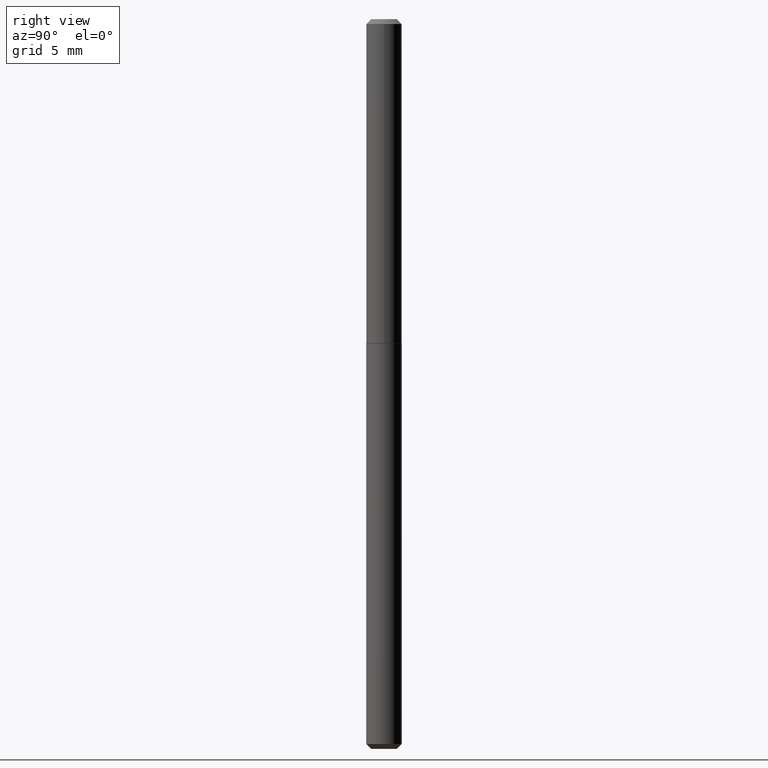
[diagram: clean part render]
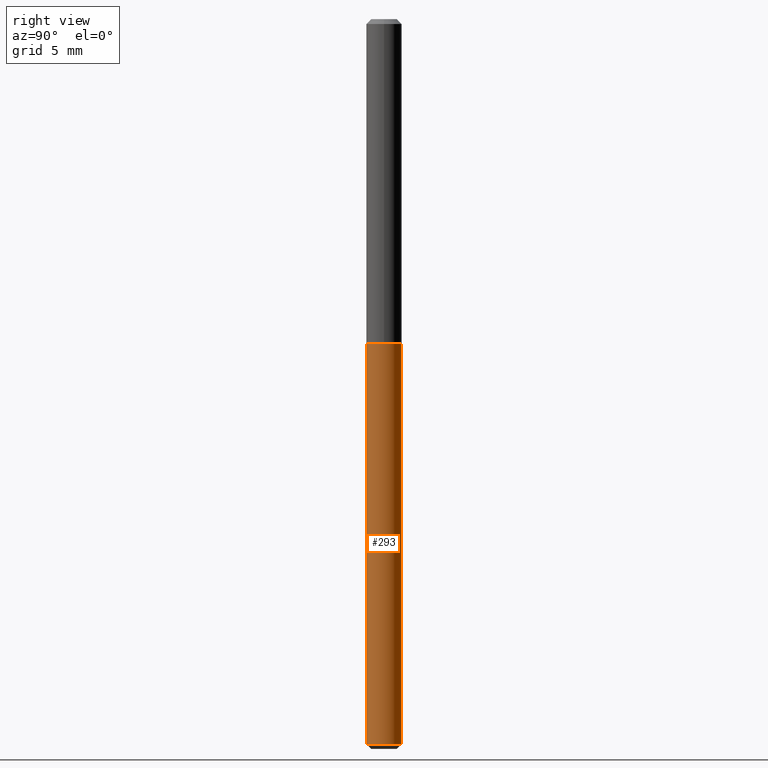
[diagram: same view with one face highlighted and labeled with its STEP entity id]
A machine part, right view. The second image highlights one B-rep face of the part: STEP entity #293.
In plain terms, the highlighted cylindrical surface (edge-blend (fillet) strip) has radius 1.3894 mm, axis along (-0, 0, 1).
Its self-contained STEP definition (entity closure, byte-faithful):
#2 = DIRECTION ( 'NONE',  ( -2.445620426770845950E-29, 3.491264209534702117E-15, 1.000000000000000000 ) ) ;
#15 = CARTESIAN_POINT ( 'NONE',  ( -3.819680584693835163E-16, -0.05470000000000771467, -2.234999999999999876 ) ) ;
#22 = VECTOR ( 'NONE', #109, 39.37007874015748143 ) ;
#37 = VECTOR ( 'NONE', #2, 39.37007874015748143 ) ;
#41 = DIRECTION ( 'NONE',  ( -6.982962677686265922E-15, -1.000000000000000000, 2.497118824190368439E-15 ) ) ;
#43 = EDGE_LOOP ( 'NONE', ( #85, #211, #186, #179 ) ) ;
#46 = EDGE_CURVE ( 'NONE', #241, #139, #392, .T. ) ;
#68 = CIRCLE ( 'NONE', #350, 0.05469999999999999862 ) ;
#73 = CARTESIAN_POINT ( 'NONE',  ( 2.445468806185136317E-29, -3.491481338843145188E-15, -0.9999999999999998890 ) ) ;
#85 = ORIENTED_EDGE ( 'NONE', *, *, #233, .T. ) ;
#104 = CARTESIAN_POINT ( 'NONE',  ( 5.465810033247131570E-29, -7.803192637618503091E-15, -2.234999999999999876 ) ) ;
#109 = DIRECTION ( 'NONE',  ( -2.445620426770845950E-29, 3.491264209534702117E-15, 1.000000000000000000 ) ) ;
#112 = CARTESIAN_POINT ( 'NONE',  ( 3.886668764607991973E-16, 0.05469999999999650836, -1.000000000000000000 ) ) ;
#127 = AXIS2_PLACEMENT_3D ( 'NONE', #349, #286, #279 ) ;
#139 = VERTEX_POINT ( 'NONE', #160 ) ;
#159 = CARTESIAN_POINT ( 'NONE',  ( -3.819680584694142819E-16, -0.05470000000000348889, -0.9999999999999996669 ) ) ;
#160 = CARTESIAN_POINT ( 'NONE',  ( 3.886668764608296177E-16, 0.05469999999999650836, -1.000000000000000222 ) ) ;
#179 = ORIENTED_EDGE ( 'NONE', *, *, #348, .F. ) ;
#186 = ORIENTED_EDGE ( 'NONE', *, *, #46, .F. ) ;
#188 = LINE ( 'NONE', #159, #37 ) ;
#205 = CARTESIAN_POINT ( 'NONE',  ( 3.886668764608300122E-16, 0.05469999999999228257, -2.235000000000000320 ) ) ;
#211 = ORIENTED_EDGE ( 'NONE', *, *, #228, .T. ) ;
#228 = EDGE_CURVE ( 'NONE', #335, #139, #390, .T. ) ;
#229 = AXIS2_PLACEMENT_3D ( 'NONE', #73, #325, #41 ) ;
#231 = FACE_OUTER_BOUND ( 'NONE', #43, .T. ) ;
#232 = DIRECTION ( 'NONE',  ( -2.445620426770845950E-29, 3.491264209534702117E-15, 1.000000000000000000 ) ) ;
#233 = EDGE_CURVE ( 'NONE', #275, #335, #68, .T. ) ;
#241 = VERTEX_POINT ( 'NONE', #328 ) ;
#275 = VERTEX_POINT ( 'NONE', #15 ) ;
#279 = DIRECTION ( 'NONE',  ( -6.982962677686265922E-15, -1.000000000000000000, 2.497118824190368439E-15 ) ) ;
#286 = DIRECTION ( 'NONE',  ( -2.445620426770845950E-29, 3.491264209534702117E-15, 1.000000000000000000 ) ) ;
#292 = CYLINDRICAL_SURFACE ( 'NONE', #229, 0.05469999999999999862 ) ;
#293 = ADVANCED_FACE ( 'NONE', ( #231 ), #292, .T. ) ;
#325 = DIRECTION ( 'NONE',  ( -2.445620426770845950E-29, 3.491264209534702117E-15, 1.000000000000000000 ) ) ;
#326 = DIRECTION ( 'NONE',  ( -6.982962677686265922E-15, -1.000000000000000000, 4.994237648380736877E-15 ) ) ;
#328 = CARTESIAN_POINT ( 'NONE',  ( -3.819680584694142819E-16, -0.05470000000000348889, -0.9999999999999998890 ) ) ;
#335 = VERTEX_POINT ( 'NONE', #205 ) ;
#348 = EDGE_CURVE ( 'NONE', #275, #241, #188, .T. ) ;
#349 = CARTESIAN_POINT ( 'NONE',  ( 2.445468806185136597E-29, -3.491481338843145583E-15, -1.000000000000000000 ) ) ;
#350 = AXIS2_PLACEMENT_3D ( 'NONE', #104, #232, #326 ) ;
#390 = LINE ( 'NONE', #112, #22 ) ;
#392 = CIRCLE ( 'NONE', #127, 0.05469999999999999862 ) ;